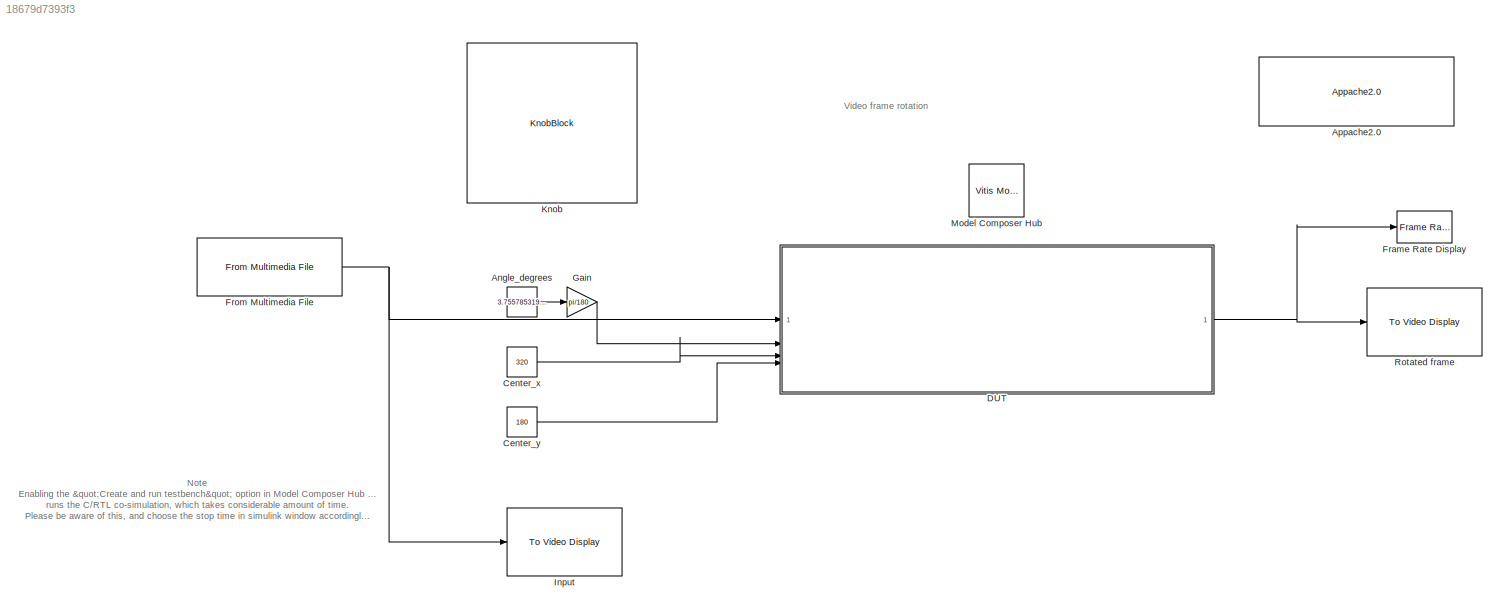
MODEL slx_18679d7393f3
KIND model
CONFIG AbsTol = auto
CONFIG EnableMultiTasking = on
CONFIG FixedStep = auto
CONFIG MaxStep = auto
CONFIG MinStep = auto
CONFIG PostLoadFcn = xmcHubUpdateInstalledDevice(gcs);
CONFIG RelTol = 1e-3
CONFIG SampleTimeConstraint = Unconstrained
CONFIG SolverName = VariableStepAuto
CONFIG StartTime = 0.0
CONFIG StopTime = 0
BLOCK [Constant] Angle_degrees
  OutDataTypeStr = single
  SampleTime = -1
  Value = 3.7557853190104
BLOCK [Reference] Appache2.0  REF=vmcUtilities/Appache2.0
  SourceBlock = vmcUtilities/Appache2.0
  SourceType = DocBlock
  UserDataPersistent = on
BLOCK [Constant] Center_x
  OutDataTypeStr = single
  SampleTime = -1
  Value = 320
BLOCK [Constant] Center_y
  OutDataTypeStr = single
  SampleTime = -1
  Value = 180
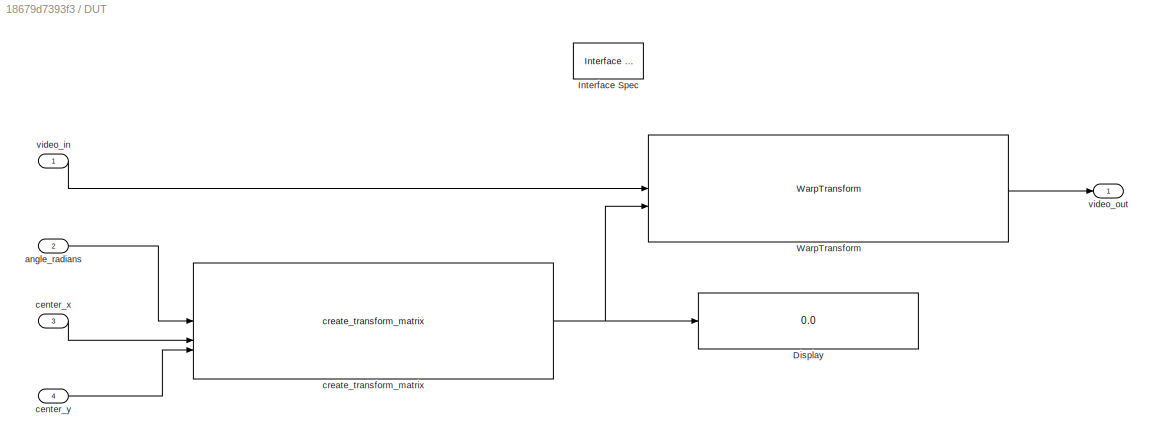
BLOCK [SubSystem] DUT
BLOCK [Display] DUT/Display
  Decimation = 1
BLOCK [Reference] DUT/Interface Spec  REF=hlsUtilities/Interface Spec
  NameLocation = top
  SourceBlock = hlsUtilities/Interface Spec
  SourceType = Interface Specification
BLOCK [Reference] DUT/WarpTransform  REF=video_frame_rotation_lib/WarpTransform
  SourceBlock = video_frame_rotation_lib/WarpTransform
  SourceType = Import Function
BLOCK [Inport] DUT/angle_radians
  NameLocation = top
  Port = 2
BLOCK [Inport] DUT/center_x
  Port = 3
BLOCK [Inport] DUT/center_y
  Port = 4
BLOCK [Reference] DUT/create_transform_matrix  REF=video_frame_rotation_lib/create_transform_matrix
  SourceBlock = video_frame_rotation_lib/create_transform_matrix
  SourceType = Import Function
BLOCK [Inport] DUT/video_in
BLOCK [Outport] DUT/video_out
  VectorParamsAs1DForOutWhenUnconnected = off
BLOCK [Reference] Frame Rate Display  REF=visionsinks/Frame Rate
Display
  SourceBlock = visionsinks/Frame Rate\nDisplay
  SourceType = Frame Rate Display
BLOCK [Reference] From Multimedia File  REF=dspvision/From Multimedia File
  SourceBlock = dspvision/From Multimedia File
  SourceType = From Multimedia File
BLOCK [Gain] Gain
  Gain = pi/180
BLOCK [Reference] Input  REF=visionsinks/To Video Display
  SourceBlock = visionsinks/To Video Display
  SourceType = To Video Display
BLOCK [KnobBlock] Knob
  ScaleMax = 8
  TickInterval = 1
BLOCK [Reference] Model Composer Hub  REF=vmcUtilities/Vitis Model Composer Hub
  SourceBlock = vmcUtilities/Vitis Model Composer Hub
  SourceType = VMC Hub
  Tag = genX
  UserDataPersistent = on
BLOCK [Reference] Rotated frame  REF=visionsinks/To Video Display
  SourceBlock = visionsinks/To Video Display
  SourceType = To Video Display
ANNOTATION (root): Note Enabling the "Create and run testbench" option in Model Composer Hub block runs the C/RTL co-simulation, which takes considerable amount of time. Please be aware of this, and choose the stop time in simulink window accordingly.
ANNOTATION (root): Video frame rotation
LINE Angle_degrees:1 -> Gain:1
LINE Center_x:1 -> DUT:3
LINE Center_y:1 -> DUT:4
LINE DUT/WarpTransform:1 -> DUT/video_out:1
LINE DUT/angle_radians:1 -> DUT/create_transform_matrix:1
LINE DUT/center_x:1 -> DUT/create_transform_matrix:2
LINE DUT/center_y:1 -> DUT/create_transform_matrix:3
NET DUT/create_transform_matrix:1 -> DUT/Display:1, DUT/WarpTransform:2
LINE DUT/video_in:1 -> DUT/WarpTransform:1
NET DUT:1 -> Frame Rate Display:1, Rotated frame:1
NET From Multimedia File:1 -> DUT:1, Input:1
LINE Gain:1 -> DUT:2
note: NET lines group one-source signal fan-out (src -> all destinations, sorted); 1:1 wires keep LINE
